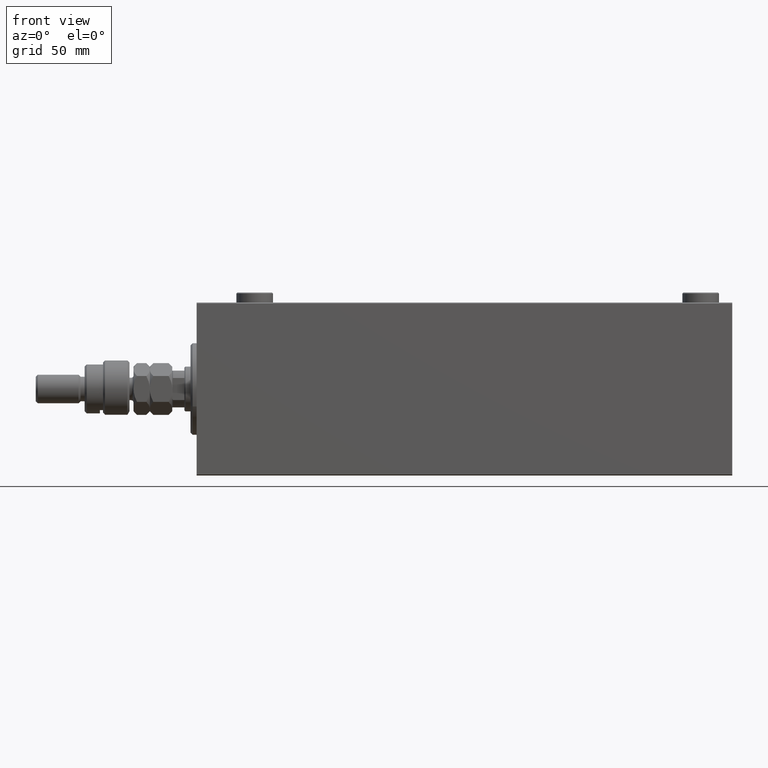
[diagram: clean part render]
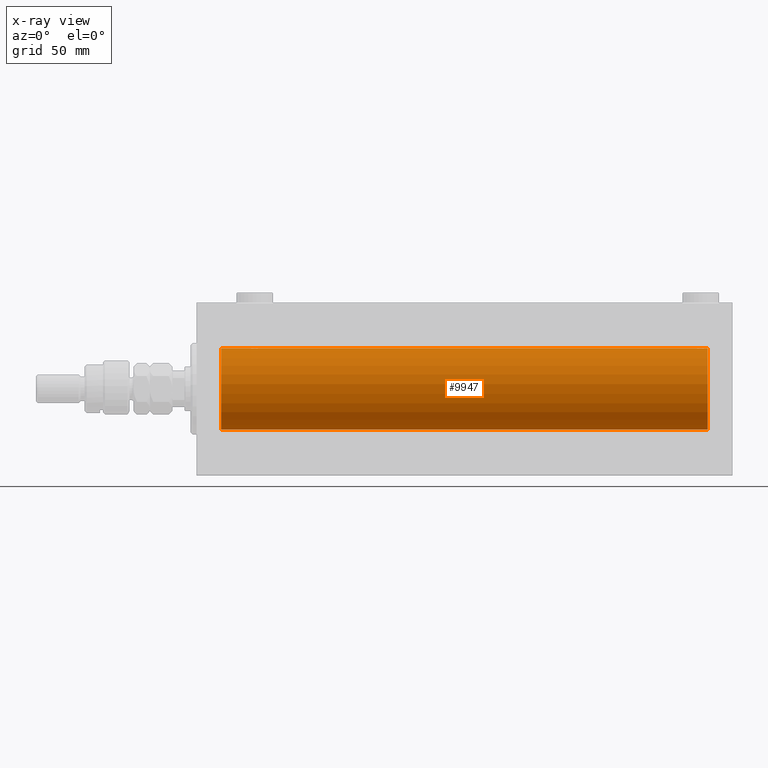
[diagram: x-ray — body ghosted, one internal face saturated and labeled with its STEP entity id]
A machine part, front view, then the same camera in x-ray: the body is ghosted and one INTERNAL B-rep face — a face not visible from any outside direction — is saturated and labeled: STEP entity #9947.
In plain terms, the highlighted cylindrical surface (partial cylindrical patch) has radius 20 mm, axis along (-1, -0, -0).
Its self-contained STEP definition (entity closure, byte-faithful):
#111 = CARTESIAN_POINT ( 'NONE',  ( 248.3857907667073448, -1.797933656607917152, 19.91908554465558367 ) ) ;
#274 = ORIENTED_EDGE ( 'NONE', *, *, #46853, .T. ) ;
#352 = CARTESIAN_POINT ( 'NONE',  ( 249.4467948419180630, -0.5270924491156583347, 19.99450181871976184 ) ) ;
#586 = CARTESIAN_POINT ( 'NONE',  ( 249.0977469155473045, -1.230936344679282257, 19.96293863536309843 ) ) ;
#1063 = CARTESIAN_POINT ( 'NONE',  ( 247.6336519614245333, -1.999898234284084308, -19.89975896996866211 ) ) ;
#1283 = VERTEX_POINT ( 'NONE', #12615 ) ;
#2036 = CARTESIAN_POINT ( 'NONE',  ( 26.90225308445270613, -1.230936344679281369, -19.96293863536309487 ) ) ;
#2281 = CARTESIAN_POINT ( 'NONE',  ( 28.23922743968432414, -1.987205673487811630, -19.90104673894211018 ) ) ;
#2435 = VECTOR ( 'NONE', #41298, 1000.000000000000000 ) ;
#2512 = CARTESIAN_POINT ( 'NONE',  ( 30.09941524884030528, -1.228758402364235724, -19.96307487248084911 ) ) ;
#2563 = CARTESIAN_POINT ( 'NONE',  ( 246.6117056279290978, -1.796691196322318218, 19.91919800395357143 ) ) ;
#2585 = CARTESIAN_POINT ( 'NONE',  ( 251.0000000000000000, 0.000000000000000000, 20.00000000000000000 ) ) ;
#3105 = CARTESIAN_POINT ( 'NONE',  ( 27.61170562792909777, -1.796691196322324213, 19.91919800395357498 ) ) ;
#3369 = ORIENTED_EDGE ( 'NONE', *, *, #30982, .F. ) ;
#4557 = LINE ( 'NONE', #29819, #25659 ) ;
#5188 = CARTESIAN_POINT ( 'NONE',  ( 246.2819458052784967, -1.591668229360221565, -19.93669678979811977 ) ) ;
#5671 = CARTESIAN_POINT ( 'NONE',  ( 27.98351467081095123, -1.936551476643008529, -19.90603968831098314 ) ) ;
#5822 = EDGE_CURVE ( 'NONE', #13095, #15571, #42941, .T. ) ;
#5966 = CARTESIAN_POINT ( 'NONE',  ( 251.0000000000000000, 2.449293598294706513E-15, -20.00000000000000000 ) ) ;
#6203 = CARTESIAN_POINT ( 'NONE',  ( 245.9005847511597551, -1.228758402364247049, 19.96307487248084911 ) ) ;
#6222 = LINE ( 'NONE', #2585, #20804 ) ;
#6281 = CARTESIAN_POINT ( 'NONE',  ( 29.71805419472152110, -1.591668229360197806, 19.93669678979812687 ) ) ;
#6390 = CARTESIAN_POINT ( 'NONE',  ( 30.50000000000000000, -0.2610801504281901053, -20.00000000000000000 ) ) ;
#6677 = CARTESIAN_POINT ( 'NONE',  ( 247.3663480385754951, -1.999898234284065657, 19.89975896996866211 ) ) ;
#6988 = CARTESIAN_POINT ( 'NONE',  ( 26.50000000000001421, -0.2610801504281932695, 20.00000000000000000 ) ) ;
#7229 = CARTESIAN_POINT ( 'NONE',  ( 27.27971054205535495, -1.589957321664213552, 19.93683391378736047 ) ) ;
#7718 = AXIS2_PLACEMENT_3D ( 'NONE', #10908, #25711, #17488 ) ;
#7858 = CARTESIAN_POINT ( 'NONE',  ( 247.6305887171083668, -2.000100592782557474, 19.89973863218036243 ) ) ;
#7934 = EDGE_CURVE ( 'NONE', #22553, #41069, #28286, .T. ) ;
#7980 = DIRECTION ( 'NONE',  ( -1.000000000000000000, -0.000000000000000000, -0.000000000000000000 ) ) ;
#8423 = CARTESIAN_POINT ( 'NONE',  ( 251.0000000000000000, 2.449293598294706513E-15, -20.00000000000000000 ) ) ;
#8817 = CARTESIAN_POINT ( 'NONE',  ( 248.7202894579446593, -1.589957321664215328, -19.93683391378736403 ) ) ;
#8907 = DIRECTION ( 'NONE',  ( -1.000000000000000000, -0.000000000000000000, -0.000000000000000000 ) ) ;
#9061 = CARTESIAN_POINT ( 'NONE',  ( 245.5532051580820223, -0.5270924491157048530, -19.99450181871975474 ) ) ;
#9302 = CARTESIAN_POINT ( 'NONE',  ( 249.0994152488403870, -1.228758402364237279, -19.96307487248085266 ) ) ;
#9855 = DIRECTION ( 'NONE',  ( -1.000000000000000000, 0.000000000000000000, 0.000000000000000000 ) ) ;
#9947 = ADVANCED_FACE ( 'NONE', ( #14773 ), #22546, .F. ) ;
#9987 = CARTESIAN_POINT ( 'NONE',  ( 26.50000000000000355, -1.552596590610734385E-23, 20.00000000000000000 ) ) ;
#10253 = VERTEX_POINT ( 'NONE', #23932 ) ;
#10262 = CARTESIAN_POINT ( 'NONE',  ( 27.49932780860757475, -1.736582545981378845, -19.92459705242981371 ) ) ;
#10312 = CARTESIAN_POINT ( 'NONE',  ( 246.2797105420554260, -1.589957321664216661, 19.93683391378736403 ) ) ;
#10382 = VERTEX_POINT ( 'NONE', #28305 ) ;
#10390 = CARTESIAN_POINT ( 'NONE',  ( 27.98076487864723561, -1.935816449315131749, 19.90611141657401362 ) ) ;
#10786 = CARTESIAN_POINT ( 'NONE',  ( 249.5000000000001137, -0.2644051013331001343, 20.00000000000000711 ) ) ;
#10908 = CARTESIAN_POINT ( 'NONE',  ( 12.00000000000001066, 0.000000000000000000, 0.000000000000000000 ) ) ;
#11024 = CARTESIAN_POINT ( 'NONE',  ( 249.2468697630307872, -1.008108445278674825, 19.97602680192586888 ) ) ;
#12460 = CARTESIAN_POINT ( 'NONE',  ( 247.2392274396843277, -1.987205673487832502, -19.90104673894210308 ) ) ;
#12557 = ORIENTED_EDGE ( 'NONE', *, *, #29652, .T. ) ;
#12615 = CARTESIAN_POINT ( 'NONE',  ( 245.5000000000000000, -1.553188236289650144E-23, 20.00000000000000000 ) ) ;
#12696 = CARTESIAN_POINT ( 'NONE',  ( 248.1463067392464552, -1.897222639860616233, -19.90987429971496070 ) ) ;
#12949 = CARTESIAN_POINT ( 'NONE',  ( 30.24825913460018256, -1.005710574260840096, -19.97614991974273835 ) ) ;
#13095 = VERTEX_POINT ( 'NONE', #9987 ) ;
#13184 = CARTESIAN_POINT ( 'NONE',  ( 246.1790309315271088, -1.507328959728516438, -19.94333197382385592 ) ) ;
#13560 = CARTESIAN_POINT ( 'NONE',  ( 26.75174086539980678, -1.005710574260844092, 19.97614991974273835 ) ) ;
#13670 = CARTESIAN_POINT ( 'NONE',  ( 29.14630673924644100, -1.897222639860597360, -19.90987429971497136 ) ) ;
#13799 = CARTESIAN_POINT ( 'NONE',  ( 29.14348528733042443, -1.898187925611342974, 19.90978194174746818 ) ) ;
#13949 = CARTESIAN_POINT ( 'NONE',  ( 246.8536932607535732, -1.897222639860597360, 19.90987429971496780 ) ) ;
#14287 = VERTEX_POINT ( 'NONE', #24516 ) ;
#14506 = CARTESIAN_POINT ( 'NONE',  ( 27.17693331080529973, -1.505486175075776645, 19.94347168299866979 ) ) ;
#14773 = FACE_OUTER_BOUND ( 'NONE', #44410, .T. ) ;
#15134 = CARTESIAN_POINT ( 'NONE',  ( 249.5000000000000000, 6.438096668033870730E-15, 20.00000000000000000 ) ) ;
#15201 = B_SPLINE_CURVE_WITH_KNOTS ( 'NONE', 3,
 ( #24418, #20780, #24657, #39485, #6203, #21013, #10312, #35819, #2563, #13949, #28766, #25125, #6677, #7858, #32891, #18067, #37478, #111, #36767, #29238, #37241, #586, #11024, #352, #10786, #15134 ),
 .UNSPECIFIED., .F., .F.,
 ( 4, 2, 2, 2, 2, 2, 2, 2, 2, 2, 2, 2, 4 ),
 ( 0.006256819553329832743, 0.007038738568778792407, 0.007820657584227751202, 0.008211617091952231468, 0.008602576599676711733, 0.008993536107401190263, 0.009384495615125668794, 0.009775455122850149059, 0.01016641463057462759, 0.01055737413829910612, 0.01094833364602358639, 0.01173025266147260243, 0.01251217167692161847 ),
 .UNSPECIFIED. ) ;
#15517 = LINE ( 'NONE', #37627, #2435 ) ;
#15571 = VERTEX_POINT ( 'NONE', #20354 ) ;
#16575 = CARTESIAN_POINT ( 'NONE',  ( 248.5030655633960350, -1.735203193119904341, -19.92471783160911158 ) ) ;
#16687 = CARTESIAN_POINT ( 'NONE',  ( 251.0000000000000000, 2.449293598294706513E-15, -20.00000000000000000 ) ) ;
#17044 = ORIENTED_EDGE ( 'NONE', *, *, #26417, .F. ) ;
#17071 = CARTESIAN_POINT ( 'NONE',  ( 27.85651471266958978, -1.898187925611340976, -19.90978194174746818 ) ) ;
#17488 = DIRECTION ( 'NONE',  ( 0.000000000000000000, 0.000000000000000000, 1.000000000000000000 ) ) ;
#17678 = CARTESIAN_POINT ( 'NONE',  ( 30.09774691554730808, -1.230936344679279593, 19.96293863536309487 ) ) ;
#17910 = CARTESIAN_POINT ( 'NONE',  ( 28.23641855908585541, -1.986835489085820194, 19.90108393514801222 ) ) ;
#17990 = CARTESIAN_POINT ( 'NONE',  ( 249.5000000000000000, 2.449293582762473501E-15, -20.00000000000000000 ) ) ;
#18067 = CARTESIAN_POINT ( 'NONE',  ( 248.0164853291890665, -1.936551476643003200, 19.90603968831099024 ) ) ;
#19274 = EDGE_CURVE ( 'NONE', #1283, #10253, #15201, .T. ) ;
#19499 = CARTESIAN_POINT ( 'NONE',  ( 249.5000000000000000, 2.449293582762473501E-15, -20.00000000000000000 ) ) ;
#19768 = CARTESIAN_POINT ( 'NONE',  ( 30.44679484191798124, -0.5270924491156695479, 19.99450181871975829 ) ) ;
#20354 = CARTESIAN_POINT ( 'NONE',  ( 30.50000000000000000, -9.453669475664189070E-16, 20.00000000000000000 ) ) ;
#20482 = CARTESIAN_POINT ( 'NONE',  ( 26.50000000000000355, -6.257798774011376898E-15, -20.00000000000000000 ) ) ;
#20728 = CARTESIAN_POINT ( 'NONE',  ( 28.63365196142447644, -1.999898234284065657, -19.89975896996865856 ) ) ;
#20780 = CARTESIAN_POINT ( 'NONE',  ( 245.5000000000000568, -0.2610801504281917151, 20.00000000000000000 ) ) ;
#20802 = DIRECTION ( 'NONE',  ( -1.000000000000000000, -0.000000000000000000, -0.000000000000000000 ) ) ;
#20804 = VECTOR ( 'NONE', #32210, 1000.000000000000000 ) ;
#20905 = CIRCLE ( 'NONE', #7718, 20.00000000000000000 ) ;
#21013 = CARTESIAN_POINT ( 'NONE',  ( 246.1769333108053104, -1.505486175075782196, 19.94347168299868045 ) ) ;
#21197 = CARTESIAN_POINT ( 'NONE',  ( 29.50306556339602082, -1.735203193119896348, -19.92471783160911158 ) ) ;
#21204 = VERTEX_POINT ( 'NONE', #37731 ) ;
#21611 = CARTESIAN_POINT ( 'NONE',  ( 12.00000000000001066, 2.449293598294706513E-15, -20.00000000000000000 ) ) ;
#22036 = CARTESIAN_POINT ( 'NONE',  ( 27.49693443660398273, -1.735203193119900344, 19.92471783160911158 ) ) ;
#22152 = CARTESIAN_POINT ( 'NONE',  ( 251.0000000000000000, 0.000000000000000000, 0.000000000000000000 ) ) ;
#22546 = CYLINDRICAL_SURFACE ( 'NONE', #24303, 20.00000000000000000 ) ;
#22553 = VERTEX_POINT ( 'NONE', #17990 ) ;
#22780 = DIRECTION ( 'NONE',  ( 0.000000000000000000, 0.000000000000000000, 1.000000000000000000 ) ) ;
#23149 = CARTESIAN_POINT ( 'NONE',  ( 247.7635814409141517, -1.986835489085835738, -19.90108393514801577 ) ) ;
#23633 = CARTESIAN_POINT ( 'NONE',  ( 251.0000000000000000, 0.000000000000000000, 20.00000000000000000 ) ) ;
#23873 = CARTESIAN_POINT ( 'NONE',  ( 246.6142092332927120, -1.797933656607944908, -19.91908554465557302 ) ) ;
#23894 = CARTESIAN_POINT ( 'NONE',  ( 30.50000000000000000, -0.2644051013330992461, 19.99999999999999645 ) ) ;
#23932 = CARTESIAN_POINT ( 'NONE',  ( 249.5000000000000000, 6.438096668033870730E-15, 20.00000000000000000 ) ) ;
#23981 = DIRECTION ( 'NONE',  ( -1.000000000000000000, -0.000000000000000000, -0.000000000000000000 ) ) ;
#24119 = CARTESIAN_POINT ( 'NONE',  ( 29.72028945794465216, -1.589957321664210665, -19.93683391378736047 ) ) ;
#24303 = AXIS2_PLACEMENT_3D ( 'NONE', #44919, #7980, #22780 ) ;
#24418 = CARTESIAN_POINT ( 'NONE',  ( 245.5000000000000000, -1.553188236289650144E-23, 20.00000000000000000 ) ) ;
#24516 = CARTESIAN_POINT ( 'NONE',  ( 30.50000000000000000, 2.449293582768389958E-15, -20.00000000000000000 ) ) ;
#24606 = CARTESIAN_POINT ( 'NONE',  ( 27.61420923329272981, -1.797933656607920039, -19.91908554465558367 ) ) ;
#24657 = CARTESIAN_POINT ( 'NONE',  ( 245.5524493711749301, -0.5243189001515030645, 19.99457699142850231 ) ) ;
#24739 = CARTESIAN_POINT ( 'NONE',  ( 29.50067219139245367, -1.736582545981377734, 19.92459705242981371 ) ) ;
#24967 = CARTESIAN_POINT ( 'NONE',  ( 29.01648532918905232, -1.936551476643010528, 19.90603968831098314 ) ) ;
#25059 = ORIENTED_EDGE ( 'NONE', *, *, #34808, .F. ) ;
#25125 = CARTESIAN_POINT ( 'NONE',  ( 247.2364185590859051, -1.986835489085821527, 19.90108393514801932 ) ) ;
#25200 = CARTESIAN_POINT ( 'NONE',  ( 26.90058475115969827, -1.228758402364238833, 19.96307487248084911 ) ) ;
#25393 = VERTEX_POINT ( 'NONE', #5966 ) ;
#25659 = VECTOR ( 'NONE', #44663, 1000.000000000000000 ) ;
#25711 = DIRECTION ( 'NONE',  ( -1.000000000000000000, 0.000000000000000000, 0.000000000000000000 ) ) ;
#25770 = VECTOR ( 'NONE', #8907, 1000.000000000000000 ) ;
#26389 = ORIENTED_EDGE ( 'NONE', *, *, #29939, .T. ) ;
#26417 = EDGE_CURVE ( 'NONE', #29101, #10253, #6222, .T. ) ;
#27024 = CARTESIAN_POINT ( 'NONE',  ( 249.2482591346001755, -1.005710574260850532, -19.97614991974274190 ) ) ;
#27120 = AXIS2_PLACEMENT_3D ( 'NONE', #22152, #9855, #29669 ) ;
#27263 = CARTESIAN_POINT ( 'NONE',  ( 249.4475506288250983, -0.5243189001515076164, -19.99457699142850586 ) ) ;
#27754 = CARTESIAN_POINT ( 'NONE',  ( 247.3694112828916047, -2.000100592782575237, -19.89973863218036243 ) ) ;
#28019 = CARTESIAN_POINT ( 'NONE',  ( 245.5000000000000000, -2.194759453252805910E-14, -20.00000000000000000 ) ) ;
#28077 = LINE ( 'NONE', #42919, #33437 ) ;
#28286 = B_SPLINE_CURVE_WITH_KNOTS ( 'NONE', 3,
 ( #19499, #34318, #27263, #27024, #9302, #30675, #8817, #16575, #35047, #12696, #38212, #23149, #1063, #27754, #12460, #42351, #30924, #23873, #38452, #5188, #13184, #31407, #35290, #9061, #46251, #42111 ),
 .UNSPECIFIED., .F., .F.,
 ( 4, 2, 2, 2, 2, 2, 2, 2, 2, 2, 2, 2, 4 ),
 ( 0.006256819553329811927, 0.007038738568778726487, 0.007820657584227641915, 0.008211617091952127384, 0.008602576599676614588, 0.008993536107401101792, 0.009384495615125588996, 0.009775455122850074466, 0.01016641463057456167, 0.01055737413829904714, 0.01094833364602353434, 0.01173025266147256600, 0.01251217167692159765 ),
 .UNSPECIFIED. ) ;
#28305 = CARTESIAN_POINT ( 'NONE',  ( 12.00000000000001066, 0.000000000000000000, 20.00000000000000000 ) ) ;
#28381 = CARTESIAN_POINT ( 'NONE',  ( 28.36634803857551290, -1.999898234284068321, 19.89975896996865856 ) ) ;
#28487 = CARTESIAN_POINT ( 'NONE',  ( 28.76358144091414815, -1.986835489085816198, -19.90108393514801222 ) ) ;
#28616 = CARTESIAN_POINT ( 'NONE',  ( 28.63058871710834552, -2.000100592782559250, 19.89973863218036598 ) ) ;
#28766 = CARTESIAN_POINT ( 'NONE',  ( 246.9807648786472214, -1.935816449315135523, 19.90611141657401006 ) ) ;
#28846 = ORIENTED_EDGE ( 'NONE', *, *, #33428, .F. ) ;
#29101 = VERTEX_POINT ( 'NONE', #23633 ) ;
#29238 = CARTESIAN_POINT ( 'NONE',  ( 248.7180541947214749, -1.591668229360202025, 19.93669678979812332 ) ) ;
#29652 = EDGE_CURVE ( 'NONE', #30387, #10382, #20905, .T. ) ;
#29669 = DIRECTION ( 'NONE',  ( 0.000000000000000000, 0.000000000000000000, 1.000000000000000000 ) ) ;
#29819 = CARTESIAN_POINT ( 'NONE',  ( 251.0000000000000000, 0.000000000000000000, 20.00000000000000000 ) ) ;
#29939 = EDGE_CURVE ( 'NONE', #14287, #21204, #43616, .T. ) ;
#30387 = VERTEX_POINT ( 'NONE', #21611 ) ;
#30675 = CARTESIAN_POINT ( 'NONE',  ( 248.8230666891946612, -1.505486175075778199, -19.94347168299867690 ) ) ;
#30924 = CARTESIAN_POINT ( 'NONE',  ( 246.8565147126695933, -1.898187925611367399, -19.90978194174746463 ) ) ;
#30982 = EDGE_CURVE ( 'NONE', #25393, #29101, #37209, .T. ) ;
#31407 = CARTESIAN_POINT ( 'NONE',  ( 245.9022530844527239, -1.230936344679302907, -19.96293863536308422 ) ) ;
#31660 = CARTESIAN_POINT ( 'NONE',  ( 26.50000000000000711, -0.2644051013331055744, -19.99999999999999645 ) ) ;
#31900 = CARTESIAN_POINT ( 'NONE',  ( 26.55320515808203297, -0.5270924491156746550, -19.99450181871975829 ) ) ;
#32210 = DIRECTION ( 'NONE',  ( -1.000000000000000000, -0.000000000000000000, -0.000000000000000000 ) ) ;
#32777 = ORIENTED_EDGE ( 'NONE', *, *, #5822, .T. ) ;
#32891 = CARTESIAN_POINT ( 'NONE',  ( 247.7607725603157007, -1.987205673487809854, 19.90104673894210308 ) ) ;
#33070 = EDGE_CURVE ( 'NONE', #25393, #22553, #15517, .T. ) ;
#33428 = EDGE_CURVE ( 'NONE', #13095, #10382, #4557, .T. ) ;
#33437 = VECTOR ( 'NONE', #20802, 1000.000000000000000 ) ;
#34318 = CARTESIAN_POINT ( 'NONE',  ( 249.4999999999999716, -0.2610801504281894947, -19.99999999999999645 ) ) ;
#34808 = EDGE_CURVE ( 'NONE', #1283, #15571, #28077, .T. ) ;
#35047 = CARTESIAN_POINT ( 'NONE',  ( 248.3882943720709022, -1.796691196322336870, -19.91919800395357143 ) ) ;
#35290 = CARTESIAN_POINT ( 'NONE',  ( 245.7531302369692980, -1.008108445278719900, -19.97602680192585822 ) ) ;
#35541 = CARTESIAN_POINT ( 'NONE',  ( 29.38829437207092354, -1.796691196322319994, -19.91919800395357498 ) ) ;
#35819 = CARTESIAN_POINT ( 'NONE',  ( 246.4969344366039650, -1.735203193119901455, 19.92471783160911158 ) ) ;
#36011 = CARTESIAN_POINT ( 'NONE',  ( 28.36941128289166514, -2.000100592782555697, -19.89973863218036598 ) ) ;
#36140 = CARTESIAN_POINT ( 'NONE',  ( 29.82096906847290896, -1.507328959728495121, 19.94333197382386302 ) ) ;
#36455 = ORIENTED_EDGE ( 'NONE', *, *, #7934, .T. ) ;
#36607 = CARTESIAN_POINT ( 'NONE',  ( 26.50000000000000355, -1.552596590610734385E-23, 20.00000000000000000 ) ) ;
#36767 = CARTESIAN_POINT ( 'NONE',  ( 248.5006721913923968, -1.736582545981380177, 19.92459705242980661 ) ) ;
#37209 = CIRCLE ( 'NONE', #27120, 20.00000000000000000 ) ;
#37241 = CARTESIAN_POINT ( 'NONE',  ( 248.8209690684728628, -1.507328959728495121, 19.94333197382385592 ) ) ;
#37325 = CARTESIAN_POINT ( 'NONE',  ( 30.50000000000000000, -9.453669475664189070E-16, 20.00000000000000000 ) ) ;
#37478 = CARTESIAN_POINT ( 'NONE',  ( 248.1434852873304351, -1.898187925611338978, 19.90978194174746818 ) ) ;
#37627 = CARTESIAN_POINT ( 'NONE',  ( 251.0000000000000000, 2.449293598294706513E-15, -20.00000000000000000 ) ) ;
#37731 = CARTESIAN_POINT ( 'NONE',  ( 26.50000000000000355, -6.257798774011376898E-15, -20.00000000000000000 ) ) ;
#38050 = LINE ( 'NONE', #8423, #25770 ) ;
#38212 = CARTESIAN_POINT ( 'NONE',  ( 248.0192351213527786, -1.935816449315146626, -19.90611141657401362 ) ) ;
#38231 = CARTESIAN_POINT ( 'NONE',  ( 30.24686976303072328, -1.008108445278688148, 19.97602680192586533 ) ) ;
#38412 = ORIENTED_EDGE ( 'NONE', *, *, #40456, .T. ) ;
#38452 = CARTESIAN_POINT ( 'NONE',  ( 246.4993278086076316, -1.736582545981399939, -19.92459705242980306 ) ) ;
#38940 = CARTESIAN_POINT ( 'NONE',  ( 29.01923512135277150, -1.935816449315127308, -19.90611141657401362 ) ) ;
#39485 = CARTESIAN_POINT ( 'NONE',  ( 245.7517408653998245, -1.005710574260844758, 19.97614991974274190 ) ) ;
#39670 = CARTESIAN_POINT ( 'NONE',  ( 27.17903093152711591, -1.507328959728495787, -19.94333197382386302 ) ) ;
#40041 = CARTESIAN_POINT ( 'NONE',  ( 28.76077256031568652, -1.987205673487814739, 19.90104673894211018 ) ) ;
#40456 = EDGE_CURVE ( 'NONE', #41069, #14287, #38050, .T. ) ;
#40625 = VECTOR ( 'NONE', #23981, 1000.000000000000000 ) ;
#41069 = VERTEX_POINT ( 'NONE', #28019 ) ;
#41298 = DIRECTION ( 'NONE',  ( -1.000000000000000000, -0.000000000000000000, -0.000000000000000000 ) ) ;
#41973 = LINE ( 'NONE', #16687, #40625 ) ;
#42111 = CARTESIAN_POINT ( 'NONE',  ( 245.5000000000000000, -2.194759453252805910E-14, -20.00000000000000000 ) ) ;
#42351 = CARTESIAN_POINT ( 'NONE',  ( 246.9835146708110187, -1.936551476643029401, -19.90603968831098314 ) ) ;
#42461 = ORIENTED_EDGE ( 'NONE', *, *, #33070, .T. ) ;
#42604 = CARTESIAN_POINT ( 'NONE',  ( 26.75313023696928738, -1.008108445278691478, -19.97602680192586533 ) ) ;
#42919 = CARTESIAN_POINT ( 'NONE',  ( 251.0000000000000000, 0.000000000000000000, 20.00000000000000000 ) ) ;
#42941 = B_SPLINE_CURVE_WITH_KNOTS ( 'NONE', 3,
 ( #36607, #6988, #43690, #13560, #25200, #14506, #7229, #22036, #3105, #47332, #10390, #17910, #28381, #28616, #40041, #24967, #13799, #43227, #24739, #6281, #36140, #17678, #38231, #19768, #23894, #37325 ),
 .UNSPECIFIED., .F., .F.,
 ( 4, 2, 2, 2, 2, 2, 2, 2, 2, 2, 2, 2, 4 ),
 ( 0.006256819553329818866, 0.007038738568778795009, 0.007820657584227770284, 0.008211617091952255754, 0.008602576599676739488, 0.008993536107401223223, 0.009384495615125706958, 0.009775455122850190692, 0.01016641463057467443, 0.01055737413829915816, 0.01094833364602364190, 0.01173025266147261110, 0.01251217167692157857 ),
 .UNSPECIFIED. ) ;
#43093 = CARTESIAN_POINT ( 'NONE',  ( 30.44755062882508412, -0.5243189001515006220, -19.99457699142850231 ) ) ;
#43227 = CARTESIAN_POINT ( 'NONE',  ( 29.38579076670728440, -1.797933656607920261, 19.91908554465558367 ) ) ;
#43336 = CARTESIAN_POINT ( 'NONE',  ( 27.28194580527850022, -1.591668229360200026, -19.93669678979812687 ) ) ;
#43616 = B_SPLINE_CURVE_WITH_KNOTS ( 'NONE', 3,
 ( #46257, #6390, #43093, #12949, #2512, #46498, #24119, #21197, #35541, #13670, #38940, #28487, #20728, #36011, #2281, #5671, #17071, #24606, #10262, #43336, #39670, #2036, #42604, #31900, #31660, #20482 ),
 .UNSPECIFIED., .F., .F.,
 ( 4, 2, 2, 2, 2, 2, 2, 2, 2, 2, 2, 2, 4 ),
 ( 0.006256819553329837948, 0.007038738568778813223, 0.007820657584227789366, 0.008211617091952273101, 0.008602576599676756836, 0.008993536107401240570, 0.009384495615125724305, 0.009775455122850208040, 0.01016641463057469177, 0.01055737413829917551, 0.01094833364602365924, 0.01173025266147262498, 0.01251217167692159245 ),
 .UNSPECIFIED. ) ;
#43690 = CARTESIAN_POINT ( 'NONE',  ( 26.55244937117491943, -0.5243189001515041747, 19.99457699142850231 ) ) ;
#44410 = EDGE_LOOP ( 'NONE', ( #3369, #42461, #36455, #38412, #26389, #274, #12557, #28846, #32777, #25059, #45226, #17044 ) ) ;
#44663 = DIRECTION ( 'NONE',  ( -1.000000000000000000, -0.000000000000000000, -0.000000000000000000 ) ) ;
#44919 = CARTESIAN_POINT ( 'NONE',  ( 251.0000000000000000, 0.000000000000000000, 0.000000000000000000 ) ) ;
#45226 = ORIENTED_EDGE ( 'NONE', *, *, #19274, .T. ) ;
#46251 = CARTESIAN_POINT ( 'NONE',  ( 245.5000000000000284, -0.2644051013331287225, -20.00000000000000000 ) ) ;
#46257 = CARTESIAN_POINT ( 'NONE',  ( 30.50000000000000000, 2.449293582768389958E-15, -20.00000000000000000 ) ) ;
#46498 = CARTESIAN_POINT ( 'NONE',  ( 29.82306668919470027, -1.505486175075773314, -19.94347168299866979 ) ) ;
#46853 = EDGE_CURVE ( 'NONE', #21204, #30387, #41973, .T. ) ;
#47332 = CARTESIAN_POINT ( 'NONE',  ( 27.85369326075355190, -1.897222639860601578, 19.90987429971495715 ) ) ;